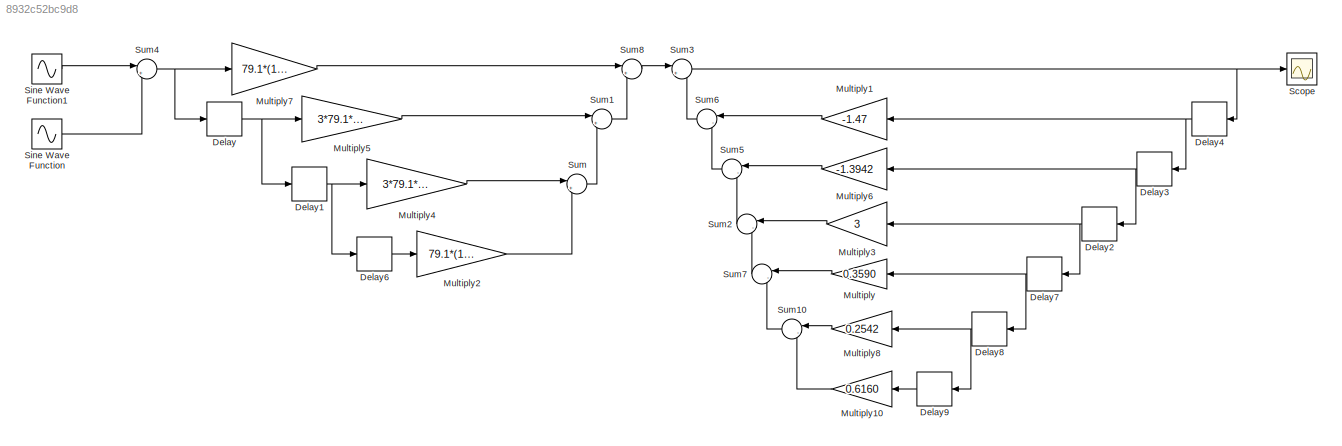
MODEL slx_8932c52bc9d8
KIND model
CONFIG AbsTol = auto
CONFIG EnableMultiTasking = off
CONFIG FixedStep = auto
CONFIG MaxStep = auto
CONFIG MinStep = auto
CONFIG RelTol = 1e-3
CONFIG SampleTimeConstraint = Unconstrained
CONFIG SolverName = VariableStepAuto
CONFIG StartTime = 0.0
CONFIG StopTime = 10.0
BLOCK [Delay] Delay
  DelayLength = 1
  InitialCondition = 0
  InputPortMap = u0
  Ports = [1, 1]
BLOCK [Delay] Delay1
  DelayLength = 1
  InitialCondition = 0
  InputPortMap = u0
  Ports = [1, 1]
BLOCK [Delay] Delay2
  DelayLength = 1
  InitialCondition = 0
  InputPortMap = u0
  Ports = [1, 1]
BLOCK [Delay] Delay3
  DelayLength = 1
  InitialCondition = 0
  InputPortMap = u0
  Ports = [1, 1]
BLOCK [Delay] Delay4
  DelayLength = 1
  InitialCondition = 0
  InputPortMap = u0
  Ports = [1, 1]
BLOCK [Delay] Delay6
  DelayLength = 1
  InitialCondition = 0
  InputPortMap = u0
  Ports = [1, 1]
BLOCK [Delay] Delay7
  DelayLength = 1
  InitialCondition = 0
  InputPortMap = u0
  Ports = [1, 1]
BLOCK [Delay] Delay8
  DelayLength = 1
  InitialCondition = 0
  InputPortMap = u0
  Ports = [1, 1]
BLOCK [Delay] Delay9
  DelayLength = 1
  InitialCondition = 0
  InputPortMap = u0
  Ports = [1, 1]
BLOCK [Gain] Multiply
  Gain = 0.3590
BLOCK [Gain] Multiply1
  Gain = -1.47
BLOCK [Gain] Multiply10
  Gain = 0.6160
BLOCK [Gain] Multiply2
  Gain = 79.1*(10^-6)
BLOCK [Gain] Multiply3
  Gain = 3
BLOCK [Gain] Multiply4
  Gain = 3*79.1*(10^-6)
BLOCK [Gain] Multiply5
  Gain = 3*79.1*(10^-6)
BLOCK [Gain] Multiply6
  Gain = -1.3942
BLOCK [Gain] Multiply7
  Gain = 79.1*(10^-6)
BLOCK [Gain] Multiply8
  Gain = 0.2542
BLOCK [Scope] Scope
  Floating = off
  NumInputPorts = 1
  Ports = [1]
  ScopeSpecificationString = Simulink.scopes.TimeScopeBlockCfg('CurrentConfiguration', extmgr.ConfigurationSet(extmgr.Configuration('Core','General UI',true),extmgr.Configuration('Core','Source UI',true),extmgr.Configuration('Sources','WiredSimulink',true),extmgr.Configuration('Visuals','Time Domain',true,'SerializedDisplays',{struct('MinYLimReal','-3','MaxYLimReal','3','YLabelReal','','MinYLimMag','0.00000','MaxYLimMag','1.1...<+1430ch>
BLOCK [Sin] Sine Wave Function
  Amplitude = 2
  Ports = [0, 1]
  SampleTime = 0.2
  Samples = 5
  SineType = Sample based
BLOCK [Sin] Sine Wave Function1
  Ports = [0, 1]
  SampleTime = 0.015
  Samples = 200
  SineType = Sample based
BLOCK [Sum] Sum
  Inputs = |++
  Ports = [2, 1]
BLOCK [Sum] Sum1
  Inputs = |++
  Ports = [2, 1]
BLOCK [Sum] Sum10
  Inputs = |-+
  Ports = [2, 1]
BLOCK [Sum] Sum2
  Inputs = |-+
  Ports = [2, 1]
BLOCK [Sum] Sum3
  Inputs = |++
  Ports = [2, 1]
BLOCK [Sum] Sum4
  Inputs = |++
  Ports = [2, 1]
BLOCK [Sum] Sum5
  Inputs = |-+
  Ports = [2, 1]
BLOCK [Sum] Sum6
  Inputs = |-+
  Ports = [2, 1]
BLOCK [Sum] Sum7
  Inputs = |-+
  Ports = [2, 1]
BLOCK [Sum] Sum8
  Inputs = |++
  Ports = [2, 1]
NET Delay1:1 -> Delay6:1, Multiply4:1
NET Delay2:1 -> Delay7:1, Multiply3:1
NET Delay3:1 -> Delay2:1, Multiply6:1
NET Delay4:1 -> Delay3:1, Multiply1:1
LINE Delay6:1 -> Multiply2:1
NET Delay7:1 -> Delay8:1, Multiply:1
NET Delay8:1 -> Delay9:1, Multiply8:1
LINE Delay9:1 -> Multiply10:1
NET Delay:1 -> Delay1:1, Multiply5:1
LINE Multiply10:1 -> Sum10:2
LINE Multiply1:1 -> Sum6:1
LINE Multiply2:1 -> Sum:2
LINE Multiply3:1 -> Sum2:1
LINE Multiply4:1 -> Sum:1
LINE Multiply5:1 -> Sum1:1
LINE Multiply6:1 -> Sum5:1
LINE Multiply7:1 -> Sum8:1
LINE Multiply8:1 -> Sum10:1
LINE Multiply:1 -> Sum7:1
LINE Sine Wave Function1:1 -> Sum4:1
LINE Sine Wave Function:1 -> Sum4:2
LINE Sum10:1 -> Sum7:2
LINE Sum1:1 -> Sum8:2
LINE Sum2:1 -> Sum5:2
NET Sum3:1 -> Delay4:1, Scope:1
NET Sum4:1 -> Delay:1, Multiply7:1
LINE Sum5:1 -> Sum6:2
LINE Sum6:1 -> Sum3:2
LINE Sum7:1 -> Sum2:2
LINE Sum8:1 -> Sum3:1
LINE Sum:1 -> Sum1:2
note: NET lines group one-source signal fan-out (src -> all destinations, sorted); 1:1 wires keep LINE
